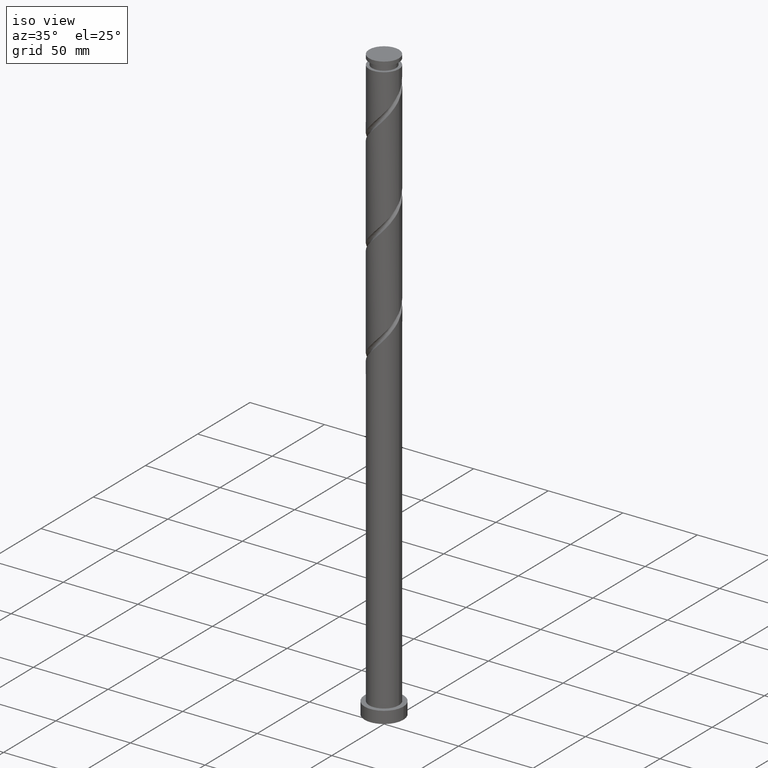
[diagram: clean part render]
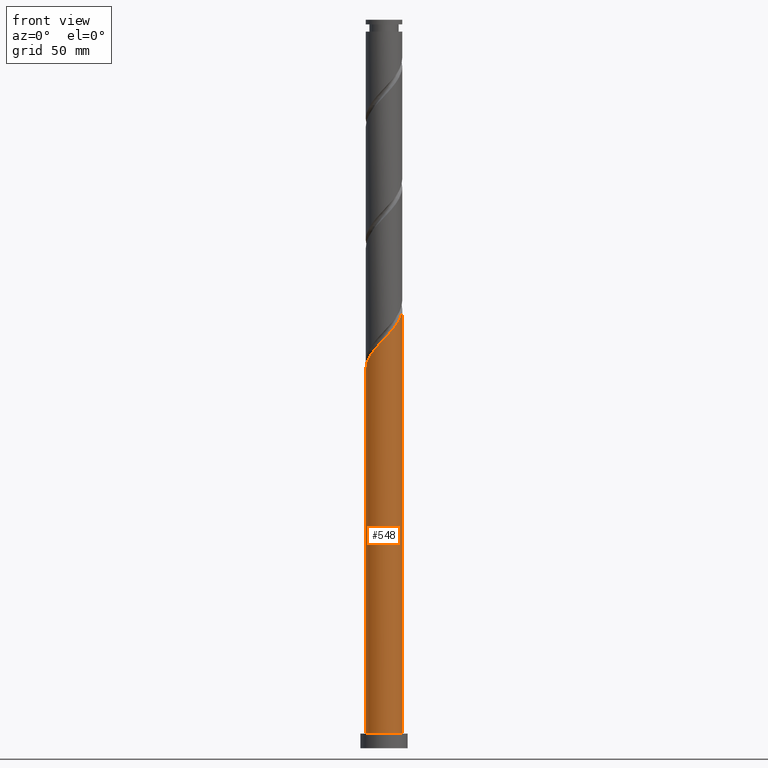
[diagram: tour spotlight — one face highlighted and labeled with its STEP entity id]
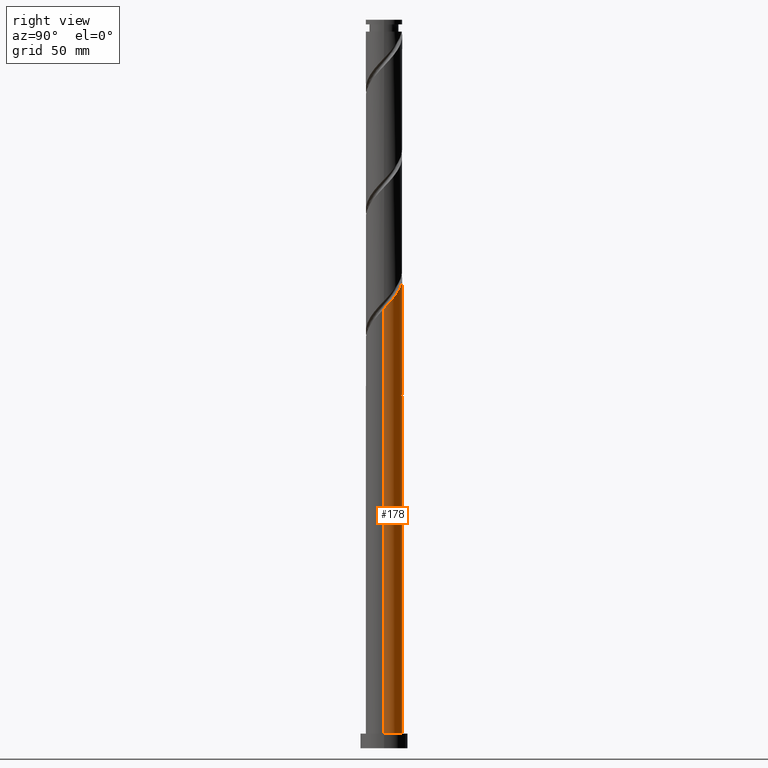
[diagram: tour spotlight — one face highlighted and labeled with its STEP entity id]
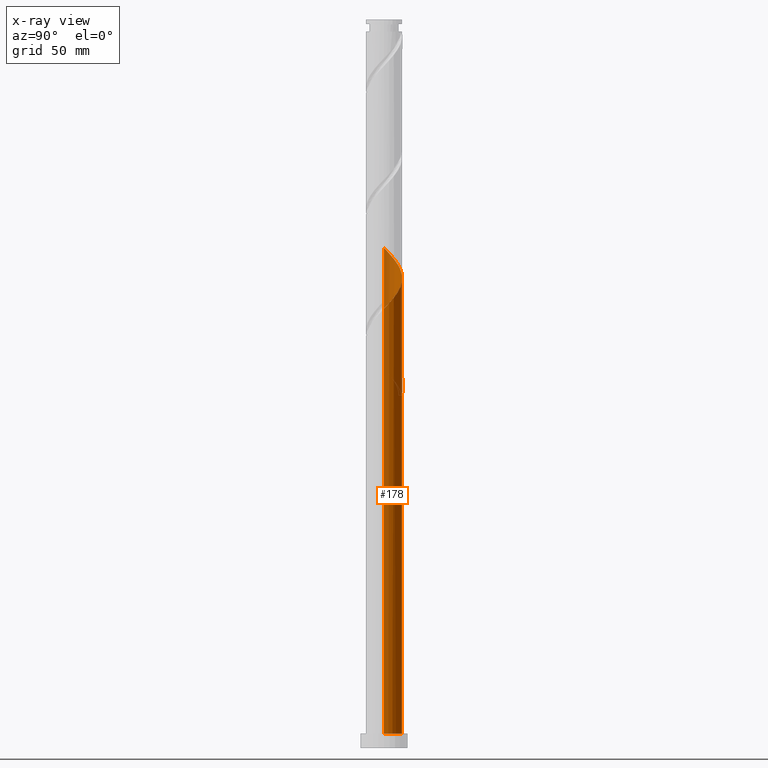
[diagram: x-ray of the same camera — body ghosted, this tour face saturated]
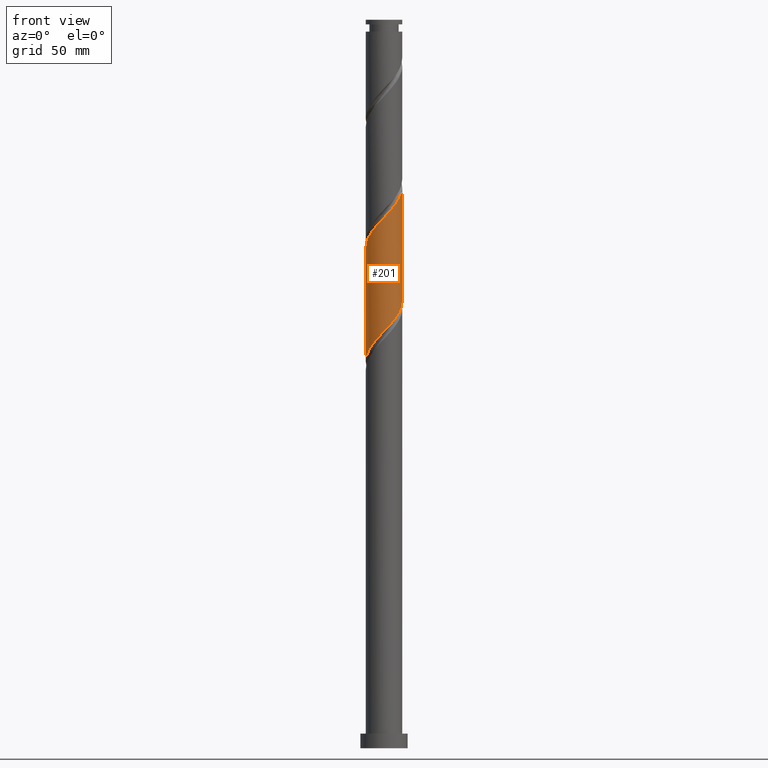
[diagram: tour spotlight — one face highlighted and labeled with its STEP entity id]
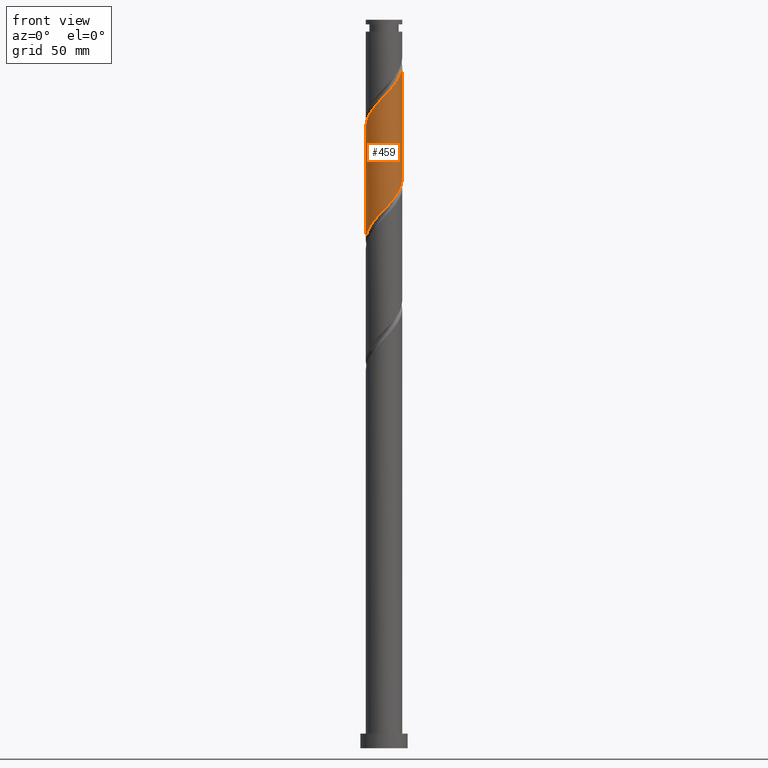
[diagram: tour spotlight — one face highlighted and labeled with its STEP entity id]
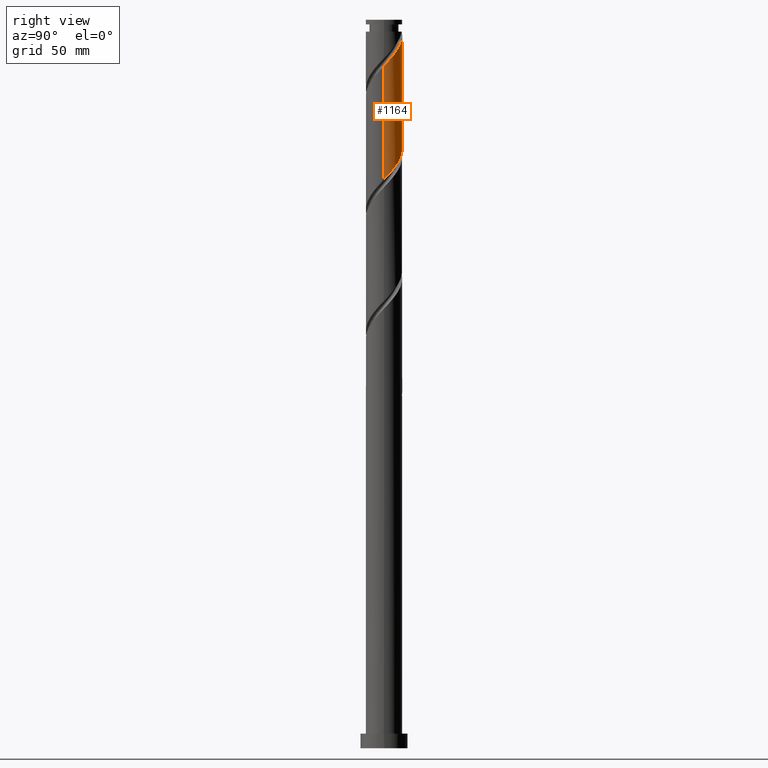
[diagram: tour spotlight — one face highlighted and labeled with its STEP entity id]
A machine part: a face-by-face anatomy tour. The part has 21 B-rep faces; the first image is the clean iso view, then the 5 largest visible faces are spotlighted one at a time (largest first), each with its STEP entity span.

Face 1 — front view, entity #548. In plain terms, the highlighted cylindrical surface (edge-blend (fillet) strip) has radius 10 mm, axis along (-0, -0, -1).
Definition (entity closure, byte-faithful):
#3 = VERTEX_POINT ( 'NONE', #1549 ) ;
#45 = DIRECTION ( 'NONE',  ( -0.000000000000000000, -0.000000000000000000, -1.000000000000000000 ) ) ;
#50 = CARTESIAN_POINT ( 'NONE',  ( -3.194128978791647810, -9.534266101484794476, 221.2939230013041936 ) ) ;
#66 = CARTESIAN_POINT ( 'NONE',  ( -10.00000000000001776, -7.623691864539335499E-15, 208.0573686466716197 ) ) ;
#80 = ORIENTED_EDGE ( 'NONE', *, *, #1810, .F. ) ;
#87 = CARTESIAN_POINT ( 'NONE',  ( -6.795917408009029437, -7.410816190582414364, 216.8494785568597081 ) ) ;
#109 = CARTESIAN_POINT ( 'NONE',  ( 1.989974874213245037, -9.800000000000013145, 226.8494785568597081 ) ) ;
#143 = CARTESIAN_POINT ( 'NONE',  ( -10.00000000000000178, 0.000000000000000000, 400.0000000000000000 ) ) ;
#204 = CYLINDRICAL_SURFACE ( 'NONE', #1207, 10.00000000000000178 ) ;
#241 = CARTESIAN_POINT ( 'NONE',  ( 10.00000000000001954, 4.065968994420978722E-15, 241.3907019800049056 ) ) ;
#249 = CARTESIAN_POINT ( 'NONE',  ( 6.659852160930830323, -7.533329889340008023, 232.4050341124152794 ) ) ;
#347 = CARTESIAN_POINT ( 'NONE',  ( 0.000000000000000000, 0.000000000000000000, 400.0000000000000000 ) ) ;
#378 = DIRECTION ( 'NONE',  ( 0.000000000000000000, 0.000000000000000000, 1.000000000000000000 ) ) ;
#381 = CARTESIAN_POINT ( 'NONE',  ( -8.188205631952753194, -5.835921397340428918, 214.6272563346375364 ) ) ;
#390 = CARTESIAN_POINT ( 'NONE',  ( -9.954323590151847867, -0.9546946436147916160, 209.0717007790819650 ) ) ;
#407 = CARTESIAN_POINT ( 'NONE',  ( 10.00000000000001421, -0.5697373744643301485, 240.7851106706202984 ) ) ;
#437 = CARTESIAN_POINT ( 'NONE',  ( 8.080585767236987849, -5.984047433418758999, 234.6272563346375364 ) ) ;
#439 = ORIENTED_EDGE ( 'NONE', *, *, #535, .T. ) ;
#448 = DIRECTION ( 'NONE',  ( -0.000000000000000000, -0.000000000000000000, -1.000000000000000000 ) ) ;
#535 = EDGE_CURVE ( 'NONE', #1839, #3, #580, .T. ) ;
#548 = ADVANCED_FACE ( 'NONE', ( #1748 ), #204, .T. ) ;
#568 = CARTESIAN_POINT ( 'NONE',  ( -0.09104542128180509453, -9.999585527973840371, 224.6272563346374511 ) ) ;
#580 = CIRCLE ( 'NONE', #1973, 10.00000000000000178 ) ;
#591 = LINE ( 'NONE', #1812, #1616 ) ;
#674 = CARTESIAN_POINT ( 'NONE',  ( -9.222629978410207485, -4.005968835176821230, 212.4050341124153078 ) ) ;
#694 = CARTESIAN_POINT ( 'NONE',  ( -10.00000000000001954, -0.4784399928674973879, 208.5659171722356291 ) ) ;
#715 = CARTESIAN_POINT ( 'NONE',  ( -5.106614982905520073, -8.661822755254432238, 219.0717007790819650 ) ) ;
#739 = CARTESIAN_POINT ( 'NONE',  ( 9.815913787825904180, -2.180029022065514077, 239.0717007790819650 ) ) ;
#749 = CARTESIAN_POINT ( 'NONE',  ( 9.482036394194134132, -3.176631206038597277, 237.9605896679708223 ) ) ;
#834 =( BOUNDED_CURVE ( )  B_SPLINE_CURVE ( 2, ( #66, #694, #390, #1933, #1026, #674, #1639, #381, #1171, #87, #1016, #715, #1453, #50, #1376, #1838, #568, #1200, #109, #2001, #1068, #1051, #1653, #249, #1665, #437, #1353, #1391, #749, #739, #893, #407, #241 ),
 .UNSPECIFIED., .F., .T. ) 
 B_SPLINE_CURVE_WITH_KNOTS ( ( 3, 2, 2, 2, 2, 2, 2, 2, 2, 2, 2, 2, 2, 2, 2, 2, 3 ),
 ( 0.05452860127731151002, 0.05833333333333334814, 0.06666666666666665186, 0.07499999999999995559, 0.08333333333333337034, 0.09166666666666667407, 0.09999999999999997780, 0.1083333333333332815, 0.1166666666666666963, 0.1250000000000000000, 0.1333333333333333037, 0.1416666666666667185, 0.1500000000000000222, 0.1583333333333333259, 0.1666666666666666297, 0.1750000000000000444, 0.1795286012773114892 ),
 .UNSPECIFIED. ) 
 CURVE ( )  GEOMETRIC_REPRESENTATION_ITEM ( )  RATIONAL_B_SPLINE_CURVE ( ( 0.9066196499552175991, 0.9068171577856303234, 0.9090909090909291557, 0.9041108139711774294, 0.9090909090909291557, 0.9041108139711774294, 0.9090909090909291557, 0.9041108139711774294, 0.9090909090909291557, 0.9041108139711774294, 0.9090909090909291557, 0.9041108139711774294, 0.9090909090909291557, 0.9041108139711774294, 0.9090909090909291557, 0.9041108139711774294, 0.9090909090909291557, 0.9041108139711774294, 0.9090909090909291557, 0.9041108139711774294, 0.9090909090909291557, 0.9041108139711774294, 0.9090909090909291557, 0.9041108139711774294, 0.9090909090909291557, 0.9041108139711774294, 0.9090909090909291557, 0.9041108139711774294, 0.9090909090909291557, 0.9041108139711774294, 0.9090909090909291557, 0.9063845652764763727, 0.9066196499552174881 ) ) 
 REPRESENTATION_ITEM ( '' )  );
#858 = EDGE_LOOP ( 'NONE', ( #80, #1060, #1866, #439 ) ) ;
#893 = CARTESIAN_POINT ( 'NONE',  ( 9.935289914203558226, -1.135787973490353764, 240.1828118901930225 ) ) ;
#924 = CARTESIAN_POINT ( 'NONE',  ( -10.00000000000000178, 0.000000000000000000, 8.000000000000000000 ) ) ;
#1008 = VECTOR ( 'NONE', #1215, 1000.000000000000000 ) ;
#1016 = CARTESIAN_POINT ( 'NONE',  ( -5.951266195457273867, -8.036319472918421525, 217.9605896679707939 ) ) ;
#1026 = CARTESIAN_POINT ( 'NONE',  ( -9.538305559066341033, -3.003452523660803841, 211.2939230013041083 ) ) ;
#1029 = CARTESIAN_POINT ( 'NONE',  ( -10.00000000000001776, -7.623691864539335499E-15, 208.0573686466715913 ) ) ;
#1051 = CARTESIAN_POINT ( 'NONE',  ( 4.948051057675698416, -8.753369680169633682, 230.1828118901931362 ) ) ;
#1060 = ORIENTED_EDGE ( 'NONE', *, *, #1673, .F. ) ;
#1064 = VERTEX_POINT ( 'NONE', #1029 ) ;
#1068 = CARTESIAN_POINT ( 'NONE',  ( 3.984023718746285248, -9.172107446408778841, 229.0717007790819366 ) ) ;
#1171 = CARTESIAN_POINT ( 'NONE',  ( -7.492061519980888207, -6.623368793961419421, 215.7383674457486222 ) ) ;
#1182 = CARTESIAN_POINT ( 'NONE',  ( 10.00000000000001776, 4.065968994420978722E-15, 241.3907019800049056 ) ) ;
#1200 = CARTESIAN_POINT ( 'NONE',  ( 0.9599533686096130003, -10.00915478735211117, 225.7383674457486791 ) ) ;
#1207 = AXIS2_PLACEMENT_3D ( 'NONE', #347, #45, #1613 ) ;
#1215 = DIRECTION ( 'NONE',  ( -0.000000000000000000, -0.000000000000000000, -1.000000000000000000 ) ) ;
#1348 = EDGE_CURVE ( 'NONE', #1064, #1839, #1841, .T. ) ;
#1353 = CARTESIAN_POINT ( 'NONE',  ( 8.614372383899674190, -5.078640411715221070, 235.7383674457485938 ) ) ;
#1376 = CARTESIAN_POINT ( 'NONE',  ( -2.168086594982433724, -9.762141185040183800, 222.4050341124152794 ) ) ;
#1391 = CARTESIAN_POINT ( 'NONE',  ( 9.148159000562365861, -4.173233390011683142, 236.8494785568597933 ) ) ;
#1449 = CARTESIAN_POINT ( 'NONE',  ( 0.000000000000000000, 0.000000000000000000, 8.000000000000000000 ) ) ;
#1453 = CARTESIAN_POINT ( 'NONE',  ( -4.150371980848581721, -9.098044428369609804, 220.1828118901930225 ) ) ;
#1549 = CARTESIAN_POINT ( 'NONE',  ( 10.00000000000000178, 1.224646799147353454E-15, 8.000000000000000000 ) ) ;
#1613 = DIRECTION ( 'NONE',  ( -1.000000000000000000, 0.000000000000000000, 0.000000000000000000 ) ) ;
#1616 = VECTOR ( 'NONE', #448, 1000.000000000000000 ) ;
#1639 = CARTESIAN_POINT ( 'NONE',  ( -8.705417805181479451, -4.920945116258624630, 213.5161452235263937 ) ) ;
#1653 = CARTESIAN_POINT ( 'NONE',  ( 5.803951609303260817, -8.143349784754821741, 231.2939230013041936 ) ) ;
#1665 = CARTESIAN_POINT ( 'NONE',  ( 7.370218964083907309, -6.758688661379380846, 233.5161452235263368 ) ) ;
#1666 = VERTEX_POINT ( 'NONE', #1182 ) ;
#1673 = EDGE_CURVE ( 'NONE', #1064, #1666, #834, .T. ) ;
#1748 = FACE_OUTER_BOUND ( 'NONE', #858, .T. ) ;
#1810 = EDGE_CURVE ( 'NONE', #1666, #3, #591, .T. ) ;
#1812 = CARTESIAN_POINT ( 'NONE',  ( 10.00000000000000178, 1.224646799147353454E-15, 400.0000000000000000 ) ) ;
#1838 = CARTESIAN_POINT ( 'NONE',  ( -1.142044211173218082, -9.990016268595582005, 223.5161452235264221 ) ) ;
#1839 = VERTEX_POINT ( 'NONE', #924 ) ;
#1841 = LINE ( 'NONE', #143, #1008 ) ;
#1866 = ORIENTED_EDGE ( 'NONE', *, *, #1348, .T. ) ;
#1929 = DIRECTION ( 'NONE',  ( 1.000000000000000000, 0.000000000000000000, 0.000000000000000000 ) ) ;
#1933 = CARTESIAN_POINT ( 'NONE',  ( -9.853981139722474580, -2.000936212144786452, 210.1828118901930509 ) ) ;
#1973 = AXIS2_PLACEMENT_3D ( 'NONE', #1449, #378, #1929 ) ;
#2001 = CARTESIAN_POINT ( 'NONE',  ( 3.019996379816873855, -9.590845212647927553, 227.9605896679708792 ) ) ;

Face 2 — right view, entity #178. An x-ray twin of the same camera follows (body ghosted, this face saturated) — the face is partly hidden behind the body. In plain terms, the highlighted cylindrical surface (edge-blend (fillet) strip) has radius 10 mm, axis along (-0, -0, -1).
Definition (entity closure, byte-faithful):
#2 = CARTESIAN_POINT ( 'NONE',  ( -8.080585767236989625, 5.984047433418756334, 201.2939230013041936 ) ) ;
#3 = VERTEX_POINT ( 'NONE', #1549 ) ;
#16 = CARTESIAN_POINT ( 'NONE',  ( -1.989974874213243705, 9.800000000000013145, 193.5161452235263937 ) ) ;
#18 = CARTESIAN_POINT ( 'NONE',  ( 0.000000000000000000, 0.000000000000000000, 193.5161452235266211 ) ) ;
#21 = CARTESIAN_POINT ( 'NONE',  ( 3.194128978791649143, 9.534266101484794476, 254.6272563346374511 ) ) ;
#24 = CIRCLE ( 'NONE', #1843, 10.00000000000000178 ) ;
#72 = CARTESIAN_POINT ( 'NONE',  ( -1.142044211173214086, 9.990016268595569571, 196.8494785568596797 ) ) ;
#94 = CARTESIAN_POINT ( 'NONE',  ( -5.803951609303265258, 8.143349784754819964, 197.9605896679708223 ) ) ;
#122 = ORIENTED_EDGE ( 'NONE', *, *, #1348, .F. ) ;
#124 = EDGE_CURVE ( 'NONE', #1898, #1681, #24, .T. ) ;
#143 = CARTESIAN_POINT ( 'NONE',  ( -10.00000000000000178, 0.000000000000000000, 400.0000000000000000 ) ) ;
#162 = CARTESIAN_POINT ( 'NONE',  ( 0.000000000000000000, 0.000000000000000000, 8.000000000000000000 ) ) ;
#175 = CARTESIAN_POINT ( 'NONE',  ( -0.09104542128179893279, 9.999585527973833265, 195.7383674457486507 ) ) ;
#178 = ADVANCED_FACE ( 'NONE', ( #1570 ), #1724, .T. ) ;
#213 = CARTESIAN_POINT ( 'NONE',  ( -6.795917408009019667, 7.410816190582407259, 203.5161452235264505 ) ) ;
#229 = CARTESIAN_POINT ( 'NONE',  ( -10.00000000000001954, -7.623691864539335499E-15, 274.7240353133382769 ) ) ;
#289 = CARTESIAN_POINT ( 'NONE',  ( -10.00000000000001421, 0.5697373744643248195, 207.4517773372870124 ) ) ;
#290 = ORIENTED_EDGE ( 'NONE', *, *, #1566, .F. ) ;
#294 = ORIENTED_EDGE ( 'NONE', *, *, #809, .F. ) ;
#306 = CARTESIAN_POINT ( 'NONE',  ( 5.951266195457275643, 8.036319472918419748, 251.2939230013041652 ) ) ;
#339 = CARTESIAN_POINT ( 'NONE',  ( -0.9599533686096075602, 10.00915478735211295, 259.0717007790819935 ) ) ;
#351 = CARTESIAN_POINT ( 'NONE',  ( -7.370218964083909974, 6.758688661379380846, 266.8494785568596512 ) ) ;
#369 = CARTESIAN_POINT ( 'NONE',  ( -7.492061519980878437, 6.623368793961415868, 204.6272563346375364 ) ) ;
#386 = CARTESIAN_POINT ( 'NONE',  ( 1.989974874213247702, 9.800000000000000711, 193.5161452235263937 ) ) ;
#395 = CARTESIAN_POINT ( 'NONE',  ( -6.659852160930831211, 7.533329889340008023, 199.0717007790819935 ) ) ;
#425 = VERTEX_POINT ( 'NONE', #836 ) ;
#445 = CARTESIAN_POINT ( 'NONE',  ( -8.614372383899674190, 5.078640411715219294, 202.4050341124153078 ) ) ;
#448 = DIRECTION ( 'NONE',  ( -0.000000000000000000, -0.000000000000000000, -1.000000000000000000 ) ) ;
#485 = ORIENTED_EDGE ( 'NONE', *, *, #578, .F. ) ;
#507 = CARTESIAN_POINT ( 'NONE',  ( 0.9599533686096159979, 10.00915478735209696, 194.6272563346375364 ) ) ;
#527 = CARTESIAN_POINT ( 'NONE',  ( -10.00000000000001776, -7.623691864539335499E-15, 274.7240353133382769 ) ) ;
#536 = CIRCLE ( 'NONE', #1044, 10.00000000000000178 ) ;
#537 = CARTESIAN_POINT ( 'NONE',  ( -10.00000000000000000, 1.162986719727772808E-14, 212.3082551337145674 ) ) ;
#562 = VERTEX_POINT ( 'NONE', #527 ) ;
#576 = ORIENTED_EDGE ( 'NONE', *, *, #1520, .T. ) ;
#578 = EDGE_CURVE ( 'NONE', #425, #1681, #1685, .T. ) ;
#591 = LINE ( 'NONE', #1812, #1616 ) ;
#603 = DIRECTION ( 'NONE',  ( -0.000000000000000000, -0.000000000000000000, -1.000000000000000000 ) ) ;
#615 = CARTESIAN_POINT ( 'NONE',  ( -1.989974874213243705, 9.800000000000013145, 193.5161452235263937 ) ) ;
#620 = DIRECTION ( 'NONE',  ( -1.000000000000000000, 0.000000000000000000, 0.000000000000000000 ) ) ;
#623 = CARTESIAN_POINT ( 'NONE',  ( 8.705417805181479451, 4.920945116258624630, 246.8494785568597081 ) ) ;
#643 = CARTESIAN_POINT ( 'NONE',  ( 2.168086594982438164, 9.762141185040183800, 255.7383674457485654 ) ) ;
#665 = CARTESIAN_POINT ( 'NONE',  ( -1.989974874213244149, 9.800000000000013145, 260.1828118901930793 ) ) ;
#689 = ORIENTED_EDGE ( 'NONE', *, *, #1810, .T. ) ;
#726 = ORIENTED_EDGE ( 'NONE', *, *, #1399, .F. ) ;
#760 =( BOUNDED_CURVE ( )  B_SPLINE_CURVE ( 2, ( #615, #1702, #1502, #1339, #94, #395, #1033, #2, #445, #1711, #1361, #2006, #1349, #289, #1198 ),
 .UNSPECIFIED., .F., .T. ) 
 B_SPLINE_CURVE_WITH_KNOTS ( ( 3, 2, 2, 2, 2, 2, 2, 3 ),
 ( 0.000000000000000000, 0.008333333333333303727, 0.01666666666666671848, 0.02500000000000002220, 0.03333333333333332593, 0.04166666666666662966, 0.05000000000000004441, 0.05452860127731151002 ),
 .UNSPECIFIED. ) 
 CURVE ( )  GEOMETRIC_REPRESENTATION_ITEM ( )  RATIONAL_B_SPLINE_CURVE ( ( 0.9090909090909291557, 0.9041108139711774294, 0.9090909090909291557, 0.9041108139711774294, 0.9090909090909291557, 0.9041108139711774294, 0.9090909090909291557, 0.9041108139711774294, 0.9090909090909291557, 0.9041108139711774294, 0.9090909090909291557, 0.9041108139711774294, 0.9090909090909291557, 0.9063845652764763727, 0.9066196499552175991 ) ) 
 REPRESENTATION_ITEM ( '' )  );
#797 = CARTESIAN_POINT ( 'NONE',  ( 0.000000000000000000, 0.000000000000000000, 400.0000000000000000 ) ) ;
#802 = CARTESIAN_POINT ( 'NONE',  ( 9.538305559066342809, 3.003452523660800288, 244.6272563346375364 ) ) ;
#809 = EDGE_CURVE ( 'NONE', #1898, #1064, #760, .T. ) ;
#836 = CARTESIAN_POINT ( 'NONE',  ( -10.00000000000000178, 1.162986719727772808E-14, 212.3082551337145958 ) ) ;
#839 = CARTESIAN_POINT ( 'NONE',  ( -9.935289914203558226, 1.135787973490352654, 273.5161452235263368 ) ) ;
#843 = VECTOR ( 'NONE', #603, 1000.000000000000000 ) ;
#849 = CARTESIAN_POINT ( 'NONE',  ( -5.951266195457262320, 8.036319472918414419, 202.4050341124153078 ) ) ;
#855 = CARTESIAN_POINT ( 'NONE',  ( -9.815913787825905956, 2.180029022065508304, 272.4050341124153078 ) ) ;
#860 = CARTESIAN_POINT ( 'NONE',  ( -5.106614982905509414, 8.661822755254421580, 201.2939230013041936 ) ) ;
#884 = CARTESIAN_POINT ( 'NONE',  ( 1.989974874213247702, 9.800000000000000711, 193.5161452235263937 ) ) ;
#924 = CARTESIAN_POINT ( 'NONE',  ( -10.00000000000000178, 0.000000000000000000, 8.000000000000000000 ) ) ;
#946 = CARTESIAN_POINT ( 'NONE',  ( 5.106614982905524514, 8.661822755254428685, 252.4050341124153363 ) ) ;
#956 = DIRECTION ( 'NONE',  ( 1.000000000000000000, 0.000000000000000000, 0.000000000000000000 ) ) ;
#973 = CARTESIAN_POINT ( 'NONE',  ( 10.00000000000001776, 0.4784399928674902824, 241.8992505055689435 ) ) ;
#983 = CARTESIAN_POINT ( 'NONE',  ( 4.150371980848582609, 9.098044428369609804, 253.5161452235263368 ) ) ;
#1008 = VECTOR ( 'NONE', #1215, 1000.000000000000000 ) ;
#1012 = CARTESIAN_POINT ( 'NONE',  ( -9.538305559066326822, 3.003452523660803841, 209.0717007790820219 ) ) ;
#1022 = EDGE_LOOP ( 'NONE', ( #290, #689, #576, #122, #294, #1887, #485, #726 ) ) ;
#1029 = CARTESIAN_POINT ( 'NONE',  ( -10.00000000000001776, -7.623691864539335499E-15, 208.0573686466715913 ) ) ;
#1033 = CARTESIAN_POINT ( 'NONE',  ( -7.370218964083909974, 6.758688661379380846, 200.1828118901931077 ) ) ;
#1044 = AXIS2_PLACEMENT_3D ( 'NONE', #162, #1894, #956 ) ;
#1064 = VERTEX_POINT ( 'NONE', #1029 ) ;
#1080 = LINE ( 'NONE', #1708, #843 ) ;
#1106 = DIRECTION ( 'NONE',  ( -3.081487911019574562E-30, -2.081668171172167567E-14, -1.000000000000000000 ) ) ;
#1108 = CARTESIAN_POINT ( 'NONE',  ( 9.853981139722474580, 2.000936212144784676, 243.5161452235264505 ) ) ;
#1130 = CARTESIAN_POINT ( 'NONE',  ( 6.795917408009032101, 7.410816190582412588, 250.1828118901931077 ) ) ;
#1141 = CARTESIAN_POINT ( 'NONE',  ( -4.948051057675699305, 8.753369680169631906, 263.5161452235264505 ) ) ;
#1147 = CARTESIAN_POINT ( 'NONE',  ( -4.150371980848574616, 9.098044428369600922, 200.1828118901931362 ) ) ;
#1168 = CARTESIAN_POINT ( 'NONE',  ( -9.222629978410189722, 4.005968835176819454, 207.9605896679708508 ) ) ;
#1179 = CARTESIAN_POINT ( 'NONE',  ( -9.954323590151835432, 0.9546946436147952797, 211.2939230013042504 ) ) ;
#1182 = CARTESIAN_POINT ( 'NONE',  ( 10.00000000000001776, 4.065968994420978722E-15, 241.3907019800049056 ) ) ;
#1198 = CARTESIAN_POINT ( 'NONE',  ( -10.00000000000001776, -7.623691864539335499E-15, 208.0573686466716197 ) ) ;
#1215 = DIRECTION ( 'NONE',  ( -0.000000000000000000, -0.000000000000000000, -1.000000000000000000 ) ) ;
#1255 = CARTESIAN_POINT ( 'NONE',  ( -5.803951609303265258, 8.143349784754819964, 264.6272563346374795 ) ) ;
#1275 = CARTESIAN_POINT ( 'NONE',  ( 0.09104542128180637128, 9.999585527973840371, 257.9605896679707939 ) ) ;
#1295 = DIRECTION ( 'NONE',  ( 0.000000000000000000, 1.000000000000000000, -1.942890293094023630E-14 ) ) ;
#1298 = CARTESIAN_POINT ( 'NONE',  ( -3.019996379816877852, 9.590845212647922224, 261.2939230013041652 ) ) ;
#1302 = CARTESIAN_POINT ( 'NONE',  ( -9.853981139722460370, 2.000936212144785564, 210.1828118901930509 ) ) ;
#1339 = CARTESIAN_POINT ( 'NONE',  ( -4.948051057675699305, 8.753369680169631906, 196.8494785568597649 ) ) ;
#1348 = EDGE_CURVE ( 'NONE', #1064, #1839, #1841, .T. ) ;
#1349 = CARTESIAN_POINT ( 'NONE',  ( -9.935289914203558226, 1.135787973490352654, 206.8494785568597649 ) ) ;
#1361 = CARTESIAN_POINT ( 'NONE',  ( -9.482036394194134132, 3.176631206038594168, 204.6272563346375364 ) ) ;
#1399 = EDGE_CURVE ( 'NONE', #562, #425, #1080, .T. ) ;
#1427 = CARTESIAN_POINT ( 'NONE',  ( 8.188205631952753194, 5.835921397340425365, 247.9605896679708508 ) ) ;
#1431 = AXIS2_PLACEMENT_3D ( 'NONE', #797, #1734, #620 ) ;
#1445 = CARTESIAN_POINT ( 'NONE',  ( 9.954323590151849643, 0.9546946436147862869, 242.4050341124152226 ) ) ;
#1476 = CARTESIAN_POINT ( 'NONE',  ( -2.168086594982426174, 9.762141185040174918, 197.9605896679708792 ) ) ;
#1479 = CARTESIAN_POINT ( 'NONE',  ( -9.148159000562365861, 4.173233390011680477, 270.1828118901930793 ) ) ;
#1502 = CARTESIAN_POINT ( 'NONE',  ( -3.984023718746287912, 9.172107446408778841, 195.7383674457486507 ) ) ;
#1520 = EDGE_CURVE ( 'NONE', #3, #1839, #536, .T. ) ;
#1549 = CARTESIAN_POINT ( 'NONE',  ( 10.00000000000000178, 1.224646799147353454E-15, 8.000000000000000000 ) ) ;
#1566 = EDGE_CURVE ( 'NONE', #1666, #562, #1877, .T. ) ;
#1570 = FACE_OUTER_BOUND ( 'NONE', #1022, .T. ) ;
#1598 = CARTESIAN_POINT ( 'NONE',  ( -8.080585767236989625, 5.984047433418756334, 267.9605896679708508 ) ) ;
#1604 = CARTESIAN_POINT ( 'NONE',  ( -8.705417805181468793, 4.920945116258621077, 206.8494785568597933 ) ) ;
#1616 = VECTOR ( 'NONE', #448, 1000.000000000000000 ) ;
#1666 = VERTEX_POINT ( 'NONE', #1182 ) ;
#1681 = VERTEX_POINT ( 'NONE', #884 ) ;
#1685 =( BOUNDED_CURVE ( )  B_SPLINE_CURVE ( 2, ( #537, #1760, #1179, #1302, #1012, #1168, #1604, #1908, #369, #213, #849, #860, #1147, #1921, #1476, #72, #175, #507, #386 ),
 .UNSPECIFIED., .F., .T. ) 
 B_SPLINE_CURVE_WITH_KNOTS ( ( 3, 2, 2, 2, 2, 2, 2, 2, 2, 3 ),
 ( 0.9295286012773115170, 0.9333333333333333481, 0.9416666666666666519, 0.9499999999999999556, 0.9583333333333333703, 0.9666666666666666741, 0.9749999999999999778, 0.9833333333333332815, 0.9916666666666666963, 1.000000000000000000 ),
 .UNSPECIFIED. ) 
 CURVE ( )  GEOMETRIC_REPRESENTATION_ITEM ( )  RATIONAL_B_SPLINE_CURVE ( ( 0.9066196499552116039, 0.9068171577856243282, 0.9090909090909231605, 0.9041108139711716563, 0.9090909090909231605, 0.9041108139711716563, 0.9090909090909231605, 0.9041108139711716563, 0.9090909090909231605, 0.9041108139711716563, 0.9090909090909231605, 0.9041108139711716563, 0.9090909090909231605, 0.9041108139711716563, 0.9090909090909231605, 0.9041108139711716563, 0.9090909090909231605, 0.9041108139711716563, 0.9090909090909231605 ) ) 
 REPRESENTATION_ITEM ( '' )  );
#1702 = CARTESIAN_POINT ( 'NONE',  ( -3.019996379816877852, 9.590845212647922224, 194.6272563346375364 ) ) ;
#1708 = CARTESIAN_POINT ( 'NONE',  ( -10.00000000000000178, 0.000000000000000000, 400.0000000000000000 ) ) ;
#1711 = CARTESIAN_POINT ( 'NONE',  ( -9.148159000562365861, 4.173233390011680477, 203.5161452235263937 ) ) ;
#1724 = CYLINDRICAL_SURFACE ( 'NONE', #1431, 10.00000000000000178 ) ;
#1726 = CARTESIAN_POINT ( 'NONE',  ( 10.00000000000001954, 4.065968994420978722E-15, 241.3907019800049056 ) ) ;
#1734 = DIRECTION ( 'NONE',  ( -0.000000000000000000, -0.000000000000000000, -1.000000000000000000 ) ) ;
#1736 = CARTESIAN_POINT ( 'NONE',  ( 9.222629978410214591, 4.005968835176815901, 245.7383674457486791 ) ) ;
#1744 = CARTESIAN_POINT ( 'NONE',  ( 1.142044211173220081, 9.990016268595582005, 256.8494785568597649 ) ) ;
#1754 = CARTESIAN_POINT ( 'NONE',  ( -6.659852160930831211, 7.533329889340008023, 265.7383674457487359 ) ) ;
#1760 = CARTESIAN_POINT ( 'NONE',  ( -10.00000000000000178, 0.4784399928675020508, 211.7997066081505295 ) ) ;
#1784 = CARTESIAN_POINT ( 'NONE',  ( -10.00000000000001776, 0.5697373744643173810, 274.1184440039536980 ) ) ;
#1810 = EDGE_CURVE ( 'NONE', #1666, #3, #591, .T. ) ;
#1812 = CARTESIAN_POINT ( 'NONE',  ( 10.00000000000000178, 1.224646799147353454E-15, 400.0000000000000000 ) ) ;
#1839 = VERTEX_POINT ( 'NONE', #924 ) ;
#1841 = LINE ( 'NONE', #143, #1008 ) ;
#1843 = AXIS2_PLACEMENT_3D ( 'NONE', #18, #1106, #1295 ) ;
#1863 = CARTESIAN_POINT ( 'NONE',  ( 7.492061519980892648, 6.623368793961415868, 249.0717007790819366 ) ) ;
#1877 =( BOUNDED_CURVE ( )  B_SPLINE_CURVE ( 2, ( #1726, #973, #1445, #1108, #802, #1736, #623, #1427, #1863, #1130, #306, #946, #983, #21, #643, #1744, #1275, #339, #665, #1298, #1904, #1141, #1255, #1754, #351, #1598, #2015, #1479, #1950, #855, #839, #1784, #229 ),
 .UNSPECIFIED., .F., .T. ) 
 B_SPLINE_CURVE_WITH_KNOTS ( ( 3, 2, 2, 2, 2, 2, 2, 2, 2, 2, 2, 2, 2, 2, 2, 2, 3 ),
 ( 0.1795286012773114892, 0.1833333333333333481, 0.1916666666666666519, 0.1999999999999999556, 0.2083333333333333703, 0.2166666666666666741, 0.2249999999999999778, 0.2333333333333332815, 0.2416666666666666963, 0.2500000000000000000, 0.2583333333333333037, 0.2666666666666667185, 0.2750000000000000222, 0.2833333333333333259, 0.2916666666666666297, 0.3000000000000000444, 0.3045286012773115725 ),
 .UNSPECIFIED. ) 
 CURVE ( )  GEOMETRIC_REPRESENTATION_ITEM ( )  RATIONAL_B_SPLINE_CURVE ( ( 0.9066196499552174881, 0.9068171577856302124, 0.9090909090909291557, 0.9041108139711774294, 0.9090909090909291557, 0.9041108139711774294, 0.9090909090909291557, 0.9041108139711774294, 0.9090909090909291557, 0.9041108139711774294, 0.9090909090909291557, 0.9041108139711774294, 0.9090909090909291557, 0.9041108139711774294, 0.9090909090909291557, 0.9041108139711774294, 0.9090909090909291557, 0.9041108139711774294, 0.9090909090909291557, 0.9041108139711774294, 0.9090909090909291557, 0.9041108139711774294, 0.9090909090909291557, 0.9041108139711774294, 0.9090909090909291557, 0.9041108139711774294, 0.9090909090909291557, 0.9041108139711774294, 0.9090909090909291557, 0.9041108139711774294, 0.9090909090909291557, 0.9063845652764762617, 0.9066196499552174881 ) ) 
 REPRESENTATION_ITEM ( '' )  );
#1887 = ORIENTED_EDGE ( 'NONE', *, *, #124, .T. ) ;
#1894 = DIRECTION ( 'NONE',  ( 0.000000000000000000, 0.000000000000000000, 1.000000000000000000 ) ) ;
#1898 = VERTEX_POINT ( 'NONE', #16 ) ;
#1904 = CARTESIAN_POINT ( 'NONE',  ( -3.984023718746287912, 9.172107446408778841, 262.4050341124152510 ) ) ;
#1908 = CARTESIAN_POINT ( 'NONE',  ( -8.188205631952737207, 5.835921397340423589, 205.7383674457486791 ) ) ;
#1921 = CARTESIAN_POINT ( 'NONE',  ( -3.194128978791638485, 9.534266101484783817, 199.0717007790819650 ) ) ;
#1950 = CARTESIAN_POINT ( 'NONE',  ( -9.482036394194134132, 3.176631206038594168, 271.2939230013041083 ) ) ;
#2006 = CARTESIAN_POINT ( 'NONE',  ( -9.815913787825905956, 2.180029022065508304, 205.7383674457486791 ) ) ;
#2015 = CARTESIAN_POINT ( 'NONE',  ( -8.614372383899674190, 5.078640411715219294, 269.0717007790818798 ) ) ;

Face 3 — front view, entity #201. In plain terms, the highlighted cylindrical surface (edge-blend (fillet) strip) has radius 10 mm, axis along (-0, -0, -1).
Definition (entity closure, byte-faithful):
#6 = CARTESIAN_POINT ( 'NONE',  ( 4.150371980848572839, -9.098044428369600922, 233.5161452235263937 ) ) ;
#35 = CARTESIAN_POINT ( 'NONE',  ( 8.080585767236987849, -5.984047433418758999, 301.2939230013041652 ) ) ;
#36 = CARTESIAN_POINT ( 'NONE',  ( -9.815913787825893522, -2.180029022065501199, 214.6272563346375364 ) ) ;
#116 = CARTESIAN_POINT ( 'NONE',  ( -8.705417805181479451, -4.920945116258624630, 280.1828118901931362 ) ) ;
#117 = EDGE_CURVE ( 'NONE', #210, #425, #1201, .T. ) ;
#151 = CARTESIAN_POINT ( 'NONE',  ( 9.853981139722460370, -2.000936212144786897, 243.5161452235263937 ) ) ;
#157 = CARTESIAN_POINT ( 'NONE',  ( -0.09104542128180509453, -9.999585527973840371, 291.2939230013041083 ) ) ;
#167 = CARTESIAN_POINT ( 'NONE',  ( 9.954323590151835432, -0.9546946436147987214, 244.6272563346375648 ) ) ;
#176 = CARTESIAN_POINT ( 'NONE',  ( 7.370218964083907309, -6.758688661379380846, 300.1828118901930793 ) ) ;
#177 = CARTESIAN_POINT ( 'NONE',  ( -3.019996379816876519, -9.590845212647908014, 225.7383674457486507 ) ) ;
#201 = ADVANCED_FACE ( 'NONE', ( #1577 ), #1425, .T. ) ;
#210 = VERTEX_POINT ( 'NONE', #1443 ) ;
#262 = CARTESIAN_POINT ( 'NONE',  ( -9.954323590151847867, -0.9546946436147916160, 275.7383674457485654 ) ) ;
#283 = CARTESIAN_POINT ( 'NONE',  ( 10.00000000000001776, 4.065968994420978722E-15, 308.0573686466716481 ) ) ;
#303 = CARTESIAN_POINT ( 'NONE',  ( 9.935289914203558226, -1.135787973490353764, 306.8494785568597649 ) ) ;
#304 = CARTESIAN_POINT ( 'NONE',  ( -10.00000000000000355, -0.5697373744643202675, 212.9138464430991462 ) ) ;
#316 = CARTESIAN_POINT ( 'NONE',  ( -6.659852160930825882, -7.533329889339995589, 221.2939230013042220 ) ) ;
#326 = CARTESIAN_POINT ( 'NONE',  ( 1.989974874213245037, -9.800000000000013145, 293.5161452235264505 ) ) ;
#327 = CARTESIAN_POINT ( 'NONE',  ( -4.948051057675693976, -8.753369680169619471, 223.5161452235263653 ) ) ;
#413 = ORIENTED_EDGE ( 'NONE', *, *, #732, .F. ) ;
#425 = VERTEX_POINT ( 'NONE', #836 ) ;
#430 = CARTESIAN_POINT ( 'NONE',  ( -5.951266195457273867, -8.036319472918421525, 284.6272563346374227 ) ) ;
#456 = CARTESIAN_POINT ( 'NONE',  ( 9.148159000562365861, -4.173233390011683142, 303.5161452235263937 ) ) ;
#457 = CARTESIAN_POINT ( 'NONE',  ( 7.492061519980878437, -6.623368793961417644, 237.9605896679709076 ) ) ;
#478 = CARTESIAN_POINT ( 'NONE',  ( 8.614372383899674190, -5.078640411715221070, 302.4050341124151942 ) ) ;
#480 = CARTESIAN_POINT ( 'NONE',  ( -7.370218964083902868, -6.758688661379370188, 220.1828118901930793 ) ) ;
#489 = CARTESIAN_POINT ( 'NONE',  ( 10.00000000000001776, -0.5697373744643199345, 307.4517773372871261 ) ) ;
#500 = CARTESIAN_POINT ( 'NONE',  ( 6.795917408009017890, -7.410816190582407259, 236.8494785568597933 ) ) ;
#527 = CARTESIAN_POINT ( 'NONE',  ( -10.00000000000001776, -7.623691864539335499E-15, 274.7240353133382769 ) ) ;
#562 = VERTEX_POINT ( 'NONE', #527 ) ;
#563 = DIRECTION ( 'NONE',  ( -0.000000000000000000, -0.000000000000000000, -1.000000000000000000 ) ) ;
#603 = DIRECTION ( 'NONE',  ( -0.000000000000000000, -0.000000000000000000, -1.000000000000000000 ) ) ;
#631 = CARTESIAN_POINT ( 'NONE',  ( -10.00000000000000000, 1.162986719727772808E-14, 212.3082551337145674 ) ) ;
#639 = DIRECTION ( 'NONE',  ( -0.000000000000000000, -0.000000000000000000, -1.000000000000000000 ) ) ;
#642 = AXIS2_PLACEMENT_3D ( 'NONE', #1253, #639, #1137 ) ;
#649 = CARTESIAN_POINT ( 'NONE',  ( 0.09104542128179636540, -9.999585527973833265, 229.0717007790819650 ) ) ;
#732 = EDGE_CURVE ( 'NONE', #1876, #210, #1865, .T. ) ;
#769 = CARTESIAN_POINT ( 'NONE',  ( -7.492061519980888207, -6.623368793961419421, 282.4050341124152510 ) ) ;
#777 = CARTESIAN_POINT ( 'NONE',  ( 10.00000000000001954, 4.065968994420978722E-15, 308.0573686466716481 ) ) ;
#778 = CARTESIAN_POINT ( 'NONE',  ( 9.538305559066323269, -3.003452523660809170, 242.4050341124153078 ) ) ;
#787 = CARTESIAN_POINT ( 'NONE',  ( 8.705417805181468793, -4.920945116258622853, 240.1828118901930793 ) ) ;
#795 = CARTESIAN_POINT ( 'NONE',  ( 3.984023718746285248, -9.172107446408778841, 295.7383674457486222 ) ) ;
#806 = CARTESIAN_POINT ( 'NONE',  ( 4.948051057675698416, -8.753369680169633682, 296.8494785568597649 ) ) ;
#807 = CARTESIAN_POINT ( 'NONE',  ( 1.142044211173212975, -9.990016268595571347, 230.1828118901930793 ) ) ;
#836 = CARTESIAN_POINT ( 'NONE',  ( -10.00000000000000178, 1.162986719727772808E-14, 212.3082551337145958 ) ) ;
#843 = VECTOR ( 'NONE', #603, 1000.000000000000000 ) ;
#866 = EDGE_LOOP ( 'NONE', ( #413, #1187, #1219, #1660 ) ) ;
#902 = CARTESIAN_POINT ( 'NONE',  ( -9.538305559066341033, -3.003452523660803841, 277.9605896679708508 ) ) ;
#942 = CARTESIAN_POINT ( 'NONE',  ( 6.659852160930830323, -7.533329889340008023, 299.0717007790819366 ) ) ;
#943 = CARTESIAN_POINT ( 'NONE',  ( -1.989974874213246370, -9.800000000000000711, 226.8494785568597933 ) ) ;
#962 = CARTESIAN_POINT ( 'NONE',  ( -8.614372383899667085, -5.078640411715207748, 217.9605896679709360 ) ) ;
#1059 = CARTESIAN_POINT ( 'NONE',  ( -10.00000000000001954, -7.623691864539335499E-15, 274.7240353133382769 ) ) ;
#1080 = LINE ( 'NONE', #1708, #843 ) ;
#1086 = CARTESIAN_POINT ( 'NONE',  ( 9.482036394194134132, -3.176631206038597277, 304.6272563346374795 ) ) ;
#1095 = CARTESIAN_POINT ( 'NONE',  ( 3.019996379816873855, -9.590845212647927553, 294.6272563346374795 ) ) ;
#1096 = CARTESIAN_POINT ( 'NONE',  ( -3.984023718746288800, -9.172107446408757525, 224.6272563346375364 ) ) ;
#1116 = CARTESIAN_POINT ( 'NONE',  ( -0.9599533686096201057, -10.00915478735209696, 227.9605896679708508 ) ) ;
#1137 = DIRECTION ( 'NONE',  ( -1.000000000000000000, 0.000000000000000000, 0.000000000000000000 ) ) ;
#1187 = ORIENTED_EDGE ( 'NONE', *, *, #1883, .F. ) ;
#1201 =( BOUNDED_CURVE ( )  B_SPLINE_CURVE ( 2, ( #1902, #1751, #167, #151, #778, #1417, #787, #1587, #457, #500, #1880, #1261, #6, #1559, #1406, #807, #649, #1116, #943, #177, #1096, #327, #1281, #316, #480, #1892, #962, #2013, #1869, #36, #1435, #304, #631 ),
 .UNSPECIFIED., .F., .T. ) 
 B_SPLINE_CURVE_WITH_KNOTS ( ( 3, 2, 2, 2, 2, 2, 2, 2, 2, 2, 2, 2, 2, 2, 2, 2, 3 ),
 ( 0.8045286012773114059, 0.8083333333333333481, 0.8166666666666666519, 0.8249999999999999556, 0.8333333333333333703, 0.8416666666666666741, 0.8499999999999999778, 0.8583333333333332815, 0.8666666666666666963, 0.8750000000000000000, 0.8833333333333333037, 0.8916666666666667185, 0.9000000000000000222, 0.9083333333333333259, 0.9166666666666666297, 0.9250000000000000444, 0.9295286012773115170 ),
 .UNSPECIFIED. ) 
 CURVE ( )  GEOMETRIC_REPRESENTATION_ITEM ( )  RATIONAL_B_SPLINE_CURVE ( ( 0.9066196499552116039, 0.9068171577856243282, 0.9090909090909231605, 0.9041108139711716563, 0.9090909090909231605, 0.9041108139711716563, 0.9090909090909231605, 0.9041108139711716563, 0.9090909090909231605, 0.9041108139711716563, 0.9090909090909231605, 0.9041108139711716563, 0.9090909090909231605, 0.9041108139711716563, 0.9090909090909231605, 0.9041108139711716563, 0.9090909090909231605, 0.9041108139711716563, 0.9090909090909231605, 0.9041108139711716563, 0.9090909090909231605, 0.9041108139711716563, 0.9090909090909231605, 0.9041108139711716563, 0.9090909090909231605, 0.9041108139711716563, 0.9090909090909231605, 0.9041108139711716563, 0.9090909090909231605, 0.9041108139711716563, 0.9090909090909231605, 0.9063845652764703775, 0.9066196499552116039 ) ) 
 REPRESENTATION_ITEM ( '' )  );
#1219 = ORIENTED_EDGE ( 'NONE', *, *, #1399, .T. ) ;
#1223 = CARTESIAN_POINT ( 'NONE',  ( -8.188205631952753194, -5.835921397340428918, 281.2939230013042788 ) ) ;
#1252 = CARTESIAN_POINT ( 'NONE',  ( -2.168086594982433724, -9.762141185040183800, 289.0717007790818798 ) ) ;
#1253 = CARTESIAN_POINT ( 'NONE',  ( 0.000000000000000000, 0.000000000000000000, 400.0000000000000000 ) ) ;
#1261 = CARTESIAN_POINT ( 'NONE',  ( 5.106614982905505862, -8.661822755254421580, 234.6272563346375364 ) ) ;
#1271 = CARTESIAN_POINT ( 'NONE',  ( -3.194128978791647810, -9.534266101484794476, 287.9605896679709076 ) ) ;
#1281 = CARTESIAN_POINT ( 'NONE',  ( -5.803951609303261705, -8.143349784754805754, 222.4050341124153078 ) ) ;
#1399 = EDGE_CURVE ( 'NONE', #562, #425, #1080, .T. ) ;
#1405 = CARTESIAN_POINT ( 'NONE',  ( 0.9599533686096130003, -10.00915478735211117, 292.4050341124154215 ) ) ;
#1406 = CARTESIAN_POINT ( 'NONE',  ( 2.168086594982422621, -9.762141185040176694, 231.2939230013041652 ) ) ;
#1413 =( BOUNDED_CURVE ( )  B_SPLINE_CURVE ( 2, ( #1059, #1680, #262, #1540, #902, #1523, #116, #1223, #769, #1829, #430, #1531, #1576, #1271, #1252, #1891, #157, #1405, #326, #1095, #795, #806, #1548, #942, #176, #35, #478, #456, #1086, #1713, #303, #489, #777 ),
 .UNSPECIFIED., .F., .T. ) 
 B_SPLINE_CURVE_WITH_KNOTS ( ( 3, 2, 2, 2, 2, 2, 2, 2, 2, 2, 2, 2, 2, 2, 2, 2, 3 ),
 ( 0.3045286012773115725, 0.3083333333333333481, 0.3166666666666666519, 0.3249999999999999556, 0.3333333333333333703, 0.3416666666666666741, 0.3499999999999999778, 0.3583333333333332815, 0.3666666666666666963, 0.3750000000000000000, 0.3833333333333333037, 0.3916666666666667185, 0.4000000000000000222, 0.4083333333333333259, 0.4166666666666666297, 0.4250000000000000444, 0.4295286012773115725 ),
 .UNSPECIFIED. ) 
 CURVE ( )  GEOMETRIC_REPRESENTATION_ITEM ( )  RATIONAL_B_SPLINE_CURVE ( ( 0.9066196499552174881, 0.9068171577856303234, 0.9090909090909291557, 0.9041108139711774294, 0.9090909090909291557, 0.9041108139711774294, 0.9090909090909291557, 0.9041108139711774294, 0.9090909090909291557, 0.9041108139711774294, 0.9090909090909291557, 0.9041108139711774294, 0.9090909090909291557, 0.9041108139711774294, 0.9090909090909291557, 0.9041108139711774294, 0.9090909090909291557, 0.9041108139711774294, 0.9090909090909291557, 0.9041108139711774294, 0.9090909090909291557, 0.9041108139711774294, 0.9090909090909291557, 0.9041108139711774294, 0.9090909090909291557, 0.9041108139711774294, 0.9090909090909291557, 0.9041108139711774294, 0.9090909090909291557, 0.9041108139711774294, 0.9090909090909291557, 0.9063845652764762617, 0.9066196499552174881 ) ) 
 REPRESENTATION_ITEM ( '' )  );
#1417 = CARTESIAN_POINT ( 'NONE',  ( 9.222629978410189722, -4.005968835176823895, 241.2939230013041367 ) ) ;
#1425 = CYLINDRICAL_SURFACE ( 'NONE', #642, 10.00000000000000178 ) ;
#1435 = CARTESIAN_POINT ( 'NONE',  ( -9.935289914203551120, -1.135787973490349101, 213.5161452235265074 ) ) ;
#1443 = CARTESIAN_POINT ( 'NONE',  ( 10.00000000000000355, 1.186904184400837556E-14, 245.6415884670479386 ) ) ;
#1523 = CARTESIAN_POINT ( 'NONE',  ( -9.222629978410207485, -4.005968835176821230, 279.0717007790819366 ) ) ;
#1531 = CARTESIAN_POINT ( 'NONE',  ( -5.106614982905520073, -8.661822755254432238, 285.7383674457486791 ) ) ;
#1540 = CARTESIAN_POINT ( 'NONE',  ( -9.853981139722474580, -2.000936212144786452, 276.8494785568597649 ) ) ;
#1548 = CARTESIAN_POINT ( 'NONE',  ( 5.803951609303260817, -8.143349784754821741, 297.9605896679708508 ) ) ;
#1559 = CARTESIAN_POINT ( 'NONE',  ( 3.194128978791636264, -9.534266101484783817, 232.4050341124153363 ) ) ;
#1576 = CARTESIAN_POINT ( 'NONE',  ( -4.150371980848581721, -9.098044428369609804, 286.8494785568597081 ) ) ;
#1577 = FACE_OUTER_BOUND ( 'NONE', #866, .T. ) ;
#1587 = CARTESIAN_POINT ( 'NONE',  ( 8.188205631952733654, -5.835921397340429806, 239.0717007790819650 ) ) ;
#1660 = ORIENTED_EDGE ( 'NONE', *, *, #117, .F. ) ;
#1680 = CARTESIAN_POINT ( 'NONE',  ( -10.00000000000001954, -0.4784399928675052149, 275.2325838389023147 ) ) ;
#1708 = CARTESIAN_POINT ( 'NONE',  ( -10.00000000000000178, 0.000000000000000000, 400.0000000000000000 ) ) ;
#1713 = CARTESIAN_POINT ( 'NONE',  ( 9.815913787825904180, -2.180029022065514077, 305.7383674457486222 ) ) ;
#1751 = CARTESIAN_POINT ( 'NONE',  ( 10.00000000000000355, -0.4784399928674928359, 245.1330399414838439 ) ) ;
#1829 = CARTESIAN_POINT ( 'NONE',  ( -6.795917408009029437, -7.410816190582414364, 283.5161452235263937 ) ) ;
#1865 = LINE ( 'NONE', #1966, #1977 ) ;
#1869 = CARTESIAN_POINT ( 'NONE',  ( -9.482036394194125251, -3.176631206038586175, 215.7383674457486507 ) ) ;
#1876 = VERTEX_POINT ( 'NONE', #283 ) ;
#1880 = CARTESIAN_POINT ( 'NONE',  ( 5.951266195457261432, -8.036319472918416196, 235.7383674457486507 ) ) ;
#1883 = EDGE_CURVE ( 'NONE', #562, #1876, #1413, .T. ) ;
#1891 = CARTESIAN_POINT ( 'NONE',  ( -1.142044211173218082, -9.990016268595582005, 290.1828118901930793 ) ) ;
#1892 = CARTESIAN_POINT ( 'NONE',  ( -8.080585767236980743, -5.984047433418745676, 219.0717007790819366 ) ) ;
#1902 = CARTESIAN_POINT ( 'NONE',  ( 10.00000000000000355, 1.186904184400837714E-14, 245.6415884670479386 ) ) ;
#1966 = CARTESIAN_POINT ( 'NONE',  ( 10.00000000000000178, 1.224646799147353454E-15, 400.0000000000000000 ) ) ;
#1977 = VECTOR ( 'NONE', #563, 1000.000000000000000 ) ;
#2013 = CARTESIAN_POINT ( 'NONE',  ( -9.148159000562355203, -4.173233390011671595, 216.8494785568597649 ) ) ;

Face 4 — front view, entity #459. In plain terms, the highlighted cylindrical surface (edge-blend (fillet) strip) has radius 10 mm, axis along (-0, -0, -1).
Definition (entity closure, byte-faithful):
#10 = CARTESIAN_POINT ( 'NONE',  ( -10.00000000000000355, -0.5697373744643341453, 279.5805131097658318 ) ) ;
#39 = CARTESIAN_POINT ( 'NONE',  ( 3.194128978791636264, -9.534266101484783817, 299.0717007790818798 ) ) ;
#52 = CARTESIAN_POINT ( 'NONE',  ( -10.00000000000002132, -0.4784399928674704094, 341.8992505055689435 ) ) ;
#59 = CARTESIAN_POINT ( 'NONE',  ( -9.222629978410207485, -4.005968835176821230, 345.7383674457485654 ) ) ;
#60 = VERTEX_POINT ( 'NONE', #1959 ) ;
#78 = CARTESIAN_POINT ( 'NONE',  ( -9.538305559066341033, -3.003452523660803841, 344.6272563346375932 ) ) ;
#89 = CARTESIAN_POINT ( 'NONE',  ( -4.150371980848581721, -9.098044428369609804, 353.5161452235264505 ) ) ;
#97 = CARTESIAN_POINT ( 'NONE',  ( -10.00000000000000178, 0.000000000000000000, 400.0000000000000000 ) ) ;
#153 = CARTESIAN_POINT ( 'NONE',  ( -5.803951609303261705, -8.143349784754805754, 289.0717007790820503 ) ) ;
#170 = CARTESIAN_POINT ( 'NONE',  ( -4.948051057675693976, -8.753369680169619471, 290.1828118901932498 ) ) ;
#180 = CARTESIAN_POINT ( 'NONE',  ( -8.614372383899667085, -5.078640411715207748, 284.6272563346375932 ) ) ;
#192 = DIRECTION ( 'NONE',  ( -0.000000000000000000, -0.000000000000000000, -1.000000000000000000 ) ) ;
#198 = CARTESIAN_POINT ( 'NONE',  ( -7.492061519980888207, -6.623368793961419421, 349.0717007790819366 ) ) ;
#219 = CARTESIAN_POINT ( 'NONE',  ( 8.080585767236987849, -5.984047433418758999, 367.9605896679707939 ) ) ;
#221 = ORIENTED_EDGE ( 'NONE', *, *, #1492, .F. ) ;
#234 = ORIENTED_EDGE ( 'NONE', *, *, #1039, .F. ) ;
#235 = LINE ( 'NONE', #1083, #240 ) ;
#240 = VECTOR ( 'NONE', #1398, 1000.000000000000000 ) ;
#244 = CARTESIAN_POINT ( 'NONE',  ( -0.09104542128180509453, -9.999585527973840371, 357.9605896679707371 ) ) ;
#320 = CARTESIAN_POINT ( 'NONE',  ( 8.188205631952733654, -5.835921397340429806, 305.7383674457486791 ) ) ;
#329 = CARTESIAN_POINT ( 'NONE',  ( 9.222629978410189722, -4.005968835176823895, 307.9605896679709076 ) ) ;
#354 =( BOUNDED_CURVE ( )  B_SPLINE_CURVE ( 2, ( #1601, #52, #676, #1100, #78, #59, #717, #1019, #198, #1184, #1926, #1630, #89, #842, #1464, #374, #244, #1335, #886, #400, #1007, #1316, #1344, #1610, #1656, #219, #1619, #523, #687, #514, #1944, #1795, #864 ),
 .UNSPECIFIED., .F., .T. ) 
 B_SPLINE_CURVE_WITH_KNOTS ( ( 3, 2, 2, 2, 2, 2, 2, 2, 2, 2, 2, 2, 2, 2, 2, 2, 3 ),
 ( 0.5545286012773112949, 0.5583333333333333481, 0.5666666666666666519, 0.5749999999999999556, 0.5833333333333332593, 0.5916666666666666741, 0.5999999999999999778, 0.6083333333333333925, 0.6166666666666666963, 0.6250000000000000000, 0.6333333333333333037, 0.6416666666666666075, 0.6500000000000000222, 0.6583333333333333259, 0.6666666666666667407, 0.6750000000000000444, 0.6795286012773111839 ),
 .UNSPECIFIED. ) 
 CURVE ( )  GEOMETRIC_REPRESENTATION_ITEM ( )  RATIONAL_B_SPLINE_CURVE ( ( 0.9066196499552174881, 0.9068171577856301013, 0.9090909090909291557, 0.9041108139711774294, 0.9090909090909291557, 0.9041108139711774294, 0.9090909090909291557, 0.9041108139711774294, 0.9090909090909291557, 0.9041108139711774294, 0.9090909090909291557, 0.9041108139711774294, 0.9090909090909291557, 0.9041108139711774294, 0.9090909090909291557, 0.9041108139711774294, 0.9090909090909291557, 0.9041108139711774294, 0.9090909090909291557, 0.9041108139711774294, 0.9090909090909291557, 0.9041108139711774294, 0.9090909090909291557, 0.9041108139711774294, 0.9090909090909291557, 0.9041108139711774294, 0.9090909090909291557, 0.9041108139711774294, 0.9090909090909291557, 0.9041108139711774294, 0.9090909090909291557, 0.9063845652764765948, 0.9066196499552174881 ) ) 
 REPRESENTATION_ITEM ( '' )  );
#374 = CARTESIAN_POINT ( 'NONE',  ( -1.142044211173218082, -9.990016268595582005, 356.8494785568597649 ) ) ;
#400 = CARTESIAN_POINT ( 'NONE',  ( 3.019996379816873855, -9.590845212647927553, 361.2939230013041652 ) ) ;
#459 = ADVANCED_FACE ( 'NONE', ( #682 ), #497, .T. ) ;
#461 = CARTESIAN_POINT ( 'NONE',  ( -9.148159000562355203, -4.173233390011671595, 283.5161452235265074 ) ) ;
#482 = CARTESIAN_POINT ( 'NONE',  ( 7.492061519980878437, -6.623368793961417644, 304.6272563346375364 ) ) ;
#492 = CARTESIAN_POINT ( 'NONE',  ( -3.984023718746288800, -9.172107446408757525, 291.2939230013042788 ) ) ;
#497 = CYLINDRICAL_SURFACE ( 'NONE', #1239, 10.00000000000000178 ) ;
#503 = CARTESIAN_POINT ( 'NONE',  ( -9.482036394194125251, -3.176631206038586175, 282.4050341124153647 ) ) ;
#514 = CARTESIAN_POINT ( 'NONE',  ( 9.815913787825904180, -2.180029022065514077, 372.4050341124153078 ) ) ;
#523 = CARTESIAN_POINT ( 'NONE',  ( 9.148159000562365861, -4.173233390011683142, 370.1828118901930793 ) ) ;
#612 = CARTESIAN_POINT ( 'NONE',  ( 10.00000000000000355, 1.186904184400837714E-14, 312.3082551337146811 ) ) ;
#633 = CARTESIAN_POINT ( 'NONE',  ( -10.00000000000000000, 1.162986719727772808E-14, 278.9749218003812530 ) ) ;
#634 =( BOUNDED_CURVE ( )  B_SPLINE_CURVE ( 2, ( #612, #1366, #1975, #964, #1589, #329, #652, #320, #482, #1283, #1580, #1410, #1263, #39, #1437, #1098, #1562, #811, #1572, #819, #492, #170, #153, #782, #1419, #789, #180, #461, #503, #1882, #1872, #10, #633 ),
 .UNSPECIFIED., .F., .T. ) 
 B_SPLINE_CURVE_WITH_KNOTS ( ( 3, 2, 2, 2, 2, 2, 2, 2, 2, 2, 2, 2, 2, 2, 2, 2, 3 ),
 ( 0.5545286012773114059, 0.5583333333333333481, 0.5666666666666666519, 0.5749999999999999556, 0.5833333333333333703, 0.5916666666666666741, 0.5999999999999999778, 0.6083333333333332815, 0.6166666666666666963, 0.6250000000000000000, 0.6333333333333333037, 0.6416666666666667185, 0.6500000000000000222, 0.6583333333333333259, 0.6666666666666666297, 0.6750000000000000444, 0.6795286012773114059 ),
 .UNSPECIFIED. ) 
 CURVE ( )  GEOMETRIC_REPRESENTATION_ITEM ( )  RATIONAL_B_SPLINE_CURVE ( ( 0.9066196499552116039, 0.9068171577856243282, 0.9090909090909231605, 0.9041108139711716563, 0.9090909090909231605, 0.9041108139711716563, 0.9090909090909231605, 0.9041108139711716563, 0.9090909090909231605, 0.9041108139711716563, 0.9090909090909231605, 0.9041108139711716563, 0.9090909090909231605, 0.9041108139711716563, 0.9090909090909231605, 0.9041108139711716563, 0.9090909090909231605, 0.9041108139711716563, 0.9090909090909231605, 0.9041108139711716563, 0.9090909090909231605, 0.9041108139711716563, 0.9090909090909231605, 0.9041108139711716563, 0.9090909090909231605, 0.9041108139711716563, 0.9090909090909231605, 0.9041108139711716563, 0.9090909090909231605, 0.9041108139711716563, 0.9090909090909231605, 0.9063845652764704885, 0.9066196499552116039 ) ) 
 REPRESENTATION_ITEM ( '' )  );
#652 = CARTESIAN_POINT ( 'NONE',  ( 8.705417805181468793, -4.920945116258622853, 306.8494785568597081 ) ) ;
#657 = CARTESIAN_POINT ( 'NONE',  ( -10.00000000000001599, -1.195873233653229007E-16, 341.3907019800048488 ) ) ;
#668 = VERTEX_POINT ( 'NONE', #657 ) ;
#676 = CARTESIAN_POINT ( 'NONE',  ( -9.954323590151847867, -0.9546946436147916160, 342.4050341124153078 ) ) ;
#682 = FACE_OUTER_BOUND ( 'NONE', #1133, .T. ) ;
#687 = CARTESIAN_POINT ( 'NONE',  ( 9.482036394194134132, -3.176631206038597277, 371.2939230013042220 ) ) ;
#717 = CARTESIAN_POINT ( 'NONE',  ( -8.705417805181479451, -4.920945116258624630, 346.8494785568597081 ) ) ;
#725 = DIRECTION ( 'NONE',  ( -0.000000000000000000, -0.000000000000000000, -1.000000000000000000 ) ) ;
#782 = CARTESIAN_POINT ( 'NONE',  ( -6.659852160930825882, -7.533329889339995589, 287.9605896679709076 ) ) ;
#789 = CARTESIAN_POINT ( 'NONE',  ( -8.080585767236980743, -5.984047433418745676, 285.7383674457487359 ) ) ;
#796 = EDGE_CURVE ( 'NONE', #1984, #60, #235, .T. ) ;
#811 = CARTESIAN_POINT ( 'NONE',  ( -0.9599533686096201057, -10.00915478735209696, 294.6272563346374227 ) ) ;
#819 = CARTESIAN_POINT ( 'NONE',  ( -3.019996379816876519, -9.590845212647908014, 292.4050341124151942 ) ) ;
#842 = CARTESIAN_POINT ( 'NONE',  ( -3.194128978791647810, -9.534266101484794476, 354.6272563346375364 ) ) ;
#864 = CARTESIAN_POINT ( 'NONE',  ( 10.00000000000001954, -3.468032377594363183E-15, 374.7240353133382200 ) ) ;
#868 = CARTESIAN_POINT ( 'NONE',  ( 10.00000000000001776, -3.468032377594363183E-15, 374.7240353133382200 ) ) ;
#886 = CARTESIAN_POINT ( 'NONE',  ( 1.989974874213245037, -9.800000000000013145, 360.1828118901930225 ) ) ;
#964 = CARTESIAN_POINT ( 'NONE',  ( 9.853981139722460370, -2.000936212144786897, 310.1828118901931362 ) ) ;
#1007 = CARTESIAN_POINT ( 'NONE',  ( 3.984023718746285248, -9.172107446408778841, 362.4050341124151942 ) ) ;
#1019 = CARTESIAN_POINT ( 'NONE',  ( -8.188205631952753194, -5.835921397340428918, 347.9605896679707939 ) ) ;
#1039 = EDGE_CURVE ( 'NONE', #668, #1984, #354, .T. ) ;
#1083 = CARTESIAN_POINT ( 'NONE',  ( 10.00000000000000178, 1.224646799147353454E-15, 400.0000000000000000 ) ) ;
#1098 = CARTESIAN_POINT ( 'NONE',  ( 1.142044211173212975, -9.990016268595571347, 296.8494785568596512 ) ) ;
#1100 = CARTESIAN_POINT ( 'NONE',  ( -9.853981139722474580, -2.000936212144786452, 343.5161452235265074 ) ) ;
#1133 = EDGE_LOOP ( 'NONE', ( #1907, #234, #1825, #221 ) ) ;
#1184 = CARTESIAN_POINT ( 'NONE',  ( -6.795917408009029437, -7.410816190582414364, 350.1828118901931362 ) ) ;
#1239 = AXIS2_PLACEMENT_3D ( 'NONE', #1789, #192, #1292 ) ;
#1240 = VECTOR ( 'NONE', #725, 1000.000000000000000 ) ;
#1263 = CARTESIAN_POINT ( 'NONE',  ( 4.150371980848572839, -9.098044428369600922, 300.1828118901930793 ) ) ;
#1283 = CARTESIAN_POINT ( 'NONE',  ( 6.795917408009017890, -7.410816190582407259, 303.5161452235264505 ) ) ;
#1292 = DIRECTION ( 'NONE',  ( -1.000000000000000000, 0.000000000000000000, 0.000000000000000000 ) ) ;
#1316 = CARTESIAN_POINT ( 'NONE',  ( 4.948051057675698416, -8.753369680169633682, 363.5161452235263937 ) ) ;
#1335 = CARTESIAN_POINT ( 'NONE',  ( 0.9599533686096130003, -10.00915478735211117, 359.0717007790820503 ) ) ;
#1344 = CARTESIAN_POINT ( 'NONE',  ( 5.803951609303260817, -8.143349784754821741, 364.6272563346374227 ) ) ;
#1366 = CARTESIAN_POINT ( 'NONE',  ( 10.00000000000000355, -0.4784399928674928359, 311.7997066081505295 ) ) ;
#1398 = DIRECTION ( 'NONE',  ( -0.000000000000000000, -0.000000000000000000, -1.000000000000000000 ) ) ;
#1410 = CARTESIAN_POINT ( 'NONE',  ( 5.106614982905505862, -8.661822755254421580, 301.2939230013042220 ) ) ;
#1419 = CARTESIAN_POINT ( 'NONE',  ( -7.370218964083902868, -6.758688661379370188, 286.8494785568597649 ) ) ;
#1437 = CARTESIAN_POINT ( 'NONE',  ( 2.168086594982422621, -9.762141185040176694, 297.9605896679709645 ) ) ;
#1464 = CARTESIAN_POINT ( 'NONE',  ( -2.168086594982433724, -9.762141185040183800, 355.7383674457485654 ) ) ;
#1492 = EDGE_CURVE ( 'NONE', #60, #1964, #634, .T. ) ;
#1562 = CARTESIAN_POINT ( 'NONE',  ( 0.09104542128179636540, -9.999585527973833265, 295.7383674457486222 ) ) ;
#1572 = CARTESIAN_POINT ( 'NONE',  ( -1.989974874213246370, -9.800000000000000711, 293.5161452235265074 ) ) ;
#1580 = CARTESIAN_POINT ( 'NONE',  ( 5.951266195457261432, -8.036319472918416196, 302.4050341124152510 ) ) ;
#1589 = CARTESIAN_POINT ( 'NONE',  ( 9.538305559066323269, -3.003452523660809170, 309.0717007790820503 ) ) ;
#1601 = CARTESIAN_POINT ( 'NONE',  ( -10.00000000000001599, -1.195873233653229007E-16, 341.3907019800047919 ) ) ;
#1610 = CARTESIAN_POINT ( 'NONE',  ( 6.659852160930830323, -7.533329889340008023, 365.7383674457486791 ) ) ;
#1619 = CARTESIAN_POINT ( 'NONE',  ( 8.614372383899674190, -5.078640411715221070, 369.0717007790819366 ) ) ;
#1630 = CARTESIAN_POINT ( 'NONE',  ( -5.106614982905520073, -8.661822755254432238, 352.4050341124153078 ) ) ;
#1656 = CARTESIAN_POINT ( 'NONE',  ( 7.370218964083907309, -6.758688661379380846, 366.8494785568597081 ) ) ;
#1697 = LINE ( 'NONE', #97, #1240 ) ;
#1705 = CARTESIAN_POINT ( 'NONE',  ( -10.00000000000000178, 1.162986719727772808E-14, 278.9749218003812530 ) ) ;
#1789 = CARTESIAN_POINT ( 'NONE',  ( 0.000000000000000000, 0.000000000000000000, 400.0000000000000000 ) ) ;
#1795 = CARTESIAN_POINT ( 'NONE',  ( 10.00000000000000888, -0.5697373744643685622, 374.1184440039535843 ) ) ;
#1825 = ORIENTED_EDGE ( 'NONE', *, *, #1848, .T. ) ;
#1848 = EDGE_CURVE ( 'NONE', #668, #1964, #1697, .T. ) ;
#1872 = CARTESIAN_POINT ( 'NONE',  ( -9.935289914203551120, -1.135787973490349101, 280.1828118901930793 ) ) ;
#1882 = CARTESIAN_POINT ( 'NONE',  ( -9.815913787825893522, -2.180029022065501199, 281.2939230013041652 ) ) ;
#1907 = ORIENTED_EDGE ( 'NONE', *, *, #796, .F. ) ;
#1926 = CARTESIAN_POINT ( 'NONE',  ( -5.951266195457273867, -8.036319472918421525, 351.2939230013042788 ) ) ;
#1944 = CARTESIAN_POINT ( 'NONE',  ( 9.935289914203558226, -1.135787973490353764, 373.5161452235263937 ) ) ;
#1959 = CARTESIAN_POINT ( 'NONE',  ( 10.00000000000000355, 1.186904184400837556E-14, 312.3082551337146811 ) ) ;
#1964 = VERTEX_POINT ( 'NONE', #1705 ) ;
#1975 = CARTESIAN_POINT ( 'NONE',  ( 9.954323590151835432, -0.9546946436147987214, 311.2939230013042220 ) ) ;
#1984 = VERTEX_POINT ( 'NONE', #868 ) ;

Face 5 — right view, entity #1164. In plain terms, the highlighted cylindrical surface (edge-blend (fillet) strip) has radius 10 mm, axis along (-0, -0, -1).
Definition (entity closure, byte-faithful):
#32 = CARTESIAN_POINT ( 'NONE',  ( -4.150371980848574616, 9.098044428369600922, 333.5161452235263937 ) ) ;
#33 = ORIENTED_EDGE ( 'NONE', *, *, #422, .F. ) ;
#41 = CARTESIAN_POINT ( 'NONE',  ( 10.00000000000000355, 1.186904184400837714E-14, 312.3082551337146811 ) ) ;
#60 = VERTEX_POINT ( 'NONE', #1959 ) ;
#64 = EDGE_CURVE ( 'NONE', #1706, #1611, #840, .T. ) ;
#69 = CYLINDRICAL_SURFACE ( 'NONE', #406, 10.00000000000000178 ) ;
#164 = CARTESIAN_POINT ( 'NONE',  ( -9.538305559066326822, 3.003452523660803841, 342.4050341124153078 ) ) ;
#182 = CARTESIAN_POINT ( 'NONE',  ( -8.705417805181468793, 4.920945116258621077, 340.1828118901930793 ) ) ;
#190 = CARTESIAN_POINT ( 'NONE',  ( -6.795917408009019667, 7.410816190582407259, 336.8494785568598786 ) ) ;
#191 = ORIENTED_EDGE ( 'NONE', *, *, #1177, .F. ) ;
#235 = LINE ( 'NONE', #1083, #240 ) ;
#240 = VECTOR ( 'NONE', #1398, 1000.000000000000000 ) ;
#252 = CARTESIAN_POINT ( 'NONE',  ( -0.9599533686096075602, 10.00915478735211295, 392.4050341124153078 ) ) ;
#265 = CARTESIAN_POINT ( 'NONE',  ( 2.168086594982438164, 9.762141185040183800, 389.0717007790819366 ) ) ;
#322 = CARTESIAN_POINT ( 'NONE',  ( -5.106614982905509414, 8.661822755254421580, 334.6272563346376501 ) ) ;
#331 = CARTESIAN_POINT ( 'NONE',  ( 8.080585767236984296, 5.984047433418739459, 319.0717007790820503 ) ) ;
#341 = CARTESIAN_POINT ( 'NONE',  ( 10.00000000000000355, 0.5697373744643301485, 312.9138464430992030 ) ) ;
#363 = CARTESIAN_POINT ( 'NONE',  ( 7.492061519980892648, 6.623368793961415868, 382.4050341124152510 ) ) ;
#384 = CARTESIAN_POINT ( 'NONE',  ( 9.954323590151849643, 0.9546946436147862869, 375.7383674457485654 ) ) ;
#392 = CARTESIAN_POINT ( 'NONE',  ( 8.705417805181479451, 4.920945116258624630, 380.1828118901930225 ) ) ;
#406 = AXIS2_PLACEMENT_3D ( 'NONE', #1506, #1482, #1173 ) ;
#422 = EDGE_CURVE ( 'NONE', #1706, #1646, #1900, .T. ) ;
#463 = CARTESIAN_POINT ( 'NONE',  ( 1.989974874213248146, 9.800000000000000711, 326.8494785568598218 ) ) ;
#505 = CARTESIAN_POINT ( 'NONE',  ( -3.194128978791638485, 9.534266101484783817, 332.4050341124153647 ) ) ;
#532 =( BOUNDED_CURVE ( )  B_SPLINE_CURVE ( 2, ( #1728, #646, #1439, #948, #164, #1564, #182, #1875, #1746, #190, #1738, #322, #32, #505, #1277, #654, #958, #1286, #463, #1574, #1885, #1906, #832, #804, #1429, #331, #1591, #813, #1447, #1132, #822, #341, #41 ),
 .UNSPECIFIED., .F., .T. ) 
 B_SPLINE_CURVE_WITH_KNOTS ( ( 3, 2, 2, 2, 2, 2, 2, 2, 2, 2, 2, 2, 2, 2, 2, 2, 3 ),
 ( 0.4295286012773116280, 0.4333333333333333481, 0.4416666666666666519, 0.4500000000000000111, 0.4583333333333333148, 0.4666666666666666741, 0.4749999999999999778, 0.4833333333333333370, 0.4916666666666666408, 0.5000000000000000000, 0.5083333333333333037, 0.5166666666666667185, 0.5250000000000000222, 0.5333333333333333259, 0.5416666666666666297, 0.5500000000000000444, 0.5545286012773114059 ),
 .UNSPECIFIED. ) 
 CURVE ( )  GEOMETRIC_REPRESENTATION_ITEM ( )  RATIONAL_B_SPLINE_CURVE ( ( 0.9066196499552116039, 0.9068171577856244392, 0.9090909090909231605, 0.9041108139711716563, 0.9090909090909231605, 0.9041108139711716563, 0.9090909090909231605, 0.9041108139711716563, 0.9090909090909231605, 0.9041108139711716563, 0.9090909090909231605, 0.9041108139711716563, 0.9090909090909231605, 0.9041108139711716563, 0.9090909090909231605, 0.9041108139711716563, 0.9090909090909231605, 0.9041108139711716563, 0.9090909090909231605, 0.9041108139711716563, 0.9090909090909231605, 0.9041108139711716563, 0.9090909090909231605, 0.9041108139711716563, 0.9090909090909231605, 0.9041108139711716563, 0.9090909090909231605, 0.9041108139711716563, 0.9090909090909231605, 0.9041108139711716563, 0.9090909090909231605, 0.9063845652764704885, 0.9066196499552116039 ) ) 
 REPRESENTATION_ITEM ( '' )  );
#545 = CARTESIAN_POINT ( 'NONE',  ( 10.00000000000002309, 0.4784399928674518687, 375.2325838389023147 ) ) ;
#569 = CARTESIAN_POINT ( 'NONE',  ( 0.000000000000000000, 0.000000000000000000, 393.5161452235263937 ) ) ;
#572 = CARTESIAN_POINT ( 'NONE',  ( 0.09104542128180637128, 9.999585527973840371, 391.2939230013041083 ) ) ;
#600 = CARTESIAN_POINT ( 'NONE',  ( -9.999999999999968026, 0.000000000000000000, 393.5161452235263937 ) ) ;
#626 = EDGE_LOOP ( 'NONE', ( #191, #1927, #1602, #33, #1545 ) ) ;
#646 = CARTESIAN_POINT ( 'NONE',  ( -10.00000000000000000, 0.4784399928675193148, 345.1330399414838439 ) ) ;
#654 = CARTESIAN_POINT ( 'NONE',  ( -1.142044211173214086, 9.990016268595569571, 330.1828118901930793 ) ) ;
#704 = CARTESIAN_POINT ( 'NONE',  ( 9.853981139722474580, 2.000936212144784676, 376.8494785568597649 ) ) ;
#708 = VECTOR ( 'NONE', #979, 1000.000000000000000 ) ;
#796 = EDGE_CURVE ( 'NONE', #1984, #60, #235, .T. ) ;
#804 = CARTESIAN_POINT ( 'NONE',  ( 6.659852160930827658, 7.533329889339992036, 321.2939230013042220 ) ) ;
#813 = CARTESIAN_POINT ( 'NONE',  ( 9.148159000562355203, 4.173233390011670707, 316.8494785568597649 ) ) ;
#822 = CARTESIAN_POINT ( 'NONE',  ( 9.935289914203551120, 1.135787973490348213, 313.5161452235263937 ) ) ;
#832 = CARTESIAN_POINT ( 'NONE',  ( 5.803951609303267034, 8.143349784754802201, 322.4050341124153078 ) ) ;
#840 = CIRCLE ( 'NONE', #1971, 9.999999999999968026 ) ;
#868 = CARTESIAN_POINT ( 'NONE',  ( 10.00000000000001776, -3.468032377594363183E-15, 374.7240353133382200 ) ) ;
#937 = CARTESIAN_POINT ( 'NONE',  ( 5.106614982905524514, 8.661822755254428685, 385.7383674457487359 ) ) ;
#948 = CARTESIAN_POINT ( 'NONE',  ( -9.853981139722460370, 2.000936212144785564, 343.5161452235265074 ) ) ;
#949 = EDGE_CURVE ( 'NONE', #1646, #60, #532, .T. ) ;
#958 = CARTESIAN_POINT ( 'NONE',  ( -0.09104542128179893279, 9.999585527973833265, 329.0717007790819366 ) ) ;
#979 = DIRECTION ( 'NONE',  ( -0.000000000000000000, -0.000000000000000000, -1.000000000000000000 ) ) ;
#996 = CARTESIAN_POINT ( 'NONE',  ( 6.795917408009032101, 7.410816190582412588, 383.5161452235263937 ) ) ;
#999 = CARTESIAN_POINT ( 'NONE',  ( -10.00000000000000178, 0.000000000000000000, 400.0000000000000000 ) ) ;
#1037 = CARTESIAN_POINT ( 'NONE',  ( -1.989974874213243705, 9.800000000000013145, 393.5161452235263937 ) ) ;
#1041 = CARTESIAN_POINT ( 'NONE',  ( 9.222629978410214591, 4.005968835176815901, 379.0717007790819935 ) ) ;
#1083 = CARTESIAN_POINT ( 'NONE',  ( 10.00000000000000178, 1.224646799147353454E-15, 400.0000000000000000 ) ) ;
#1123 =( BOUNDED_CURVE ( )  B_SPLINE_CURVE ( 2, ( #1803, #545, #384, #704, #1153, #1041, #392, #1767, #363, #996, #1542, #937, #1683, #1668, #265, #1516, #572, #252, #1246 ),
 .UNSPECIFIED., .F., .T. ) 
 B_SPLINE_CURVE_WITH_KNOTS ( ( 3, 2, 2, 2, 2, 2, 2, 2, 2, 3 ),
 ( 0.6795286012773111839, 0.6833333333333333481, 0.6916666666666666519, 0.6999999999999999556, 0.7083333333333332593, 0.7166666666666666741, 0.7249999999999999778, 0.7333333333333333925, 0.7416666666666666963, 0.7500000000000000000 ),
 .UNSPECIFIED. ) 
 CURVE ( )  GEOMETRIC_REPRESENTATION_ITEM ( )  RATIONAL_B_SPLINE_CURVE ( ( 0.9066196499552174881, 0.9068171577856301013, 0.9090909090909291557, 0.9041108139711774294, 0.9090909090909291557, 0.9041108139711774294, 0.9090909090909291557, 0.9041108139711774294, 0.9090909090909291557, 0.9041108139711774294, 0.9090909090909291557, 0.9041108139711774294, 0.9090909090909291557, 0.9041108139711774294, 0.9090909090909291557, 0.9041108139711774294, 0.9090909090909291557, 0.9041108139711774294, 0.9090909090909291557 ) ) 
 REPRESENTATION_ITEM ( '' )  );
#1132 = CARTESIAN_POINT ( 'NONE',  ( 9.815913787825893522, 2.180029022065497202, 314.6272563346374795 ) ) ;
#1153 = CARTESIAN_POINT ( 'NONE',  ( 9.538305559066342809, 3.003452523660800288, 377.9605896679707371 ) ) ;
#1164 = ADVANCED_FACE ( 'NONE', ( #1935 ), #69, .T. ) ;
#1173 = DIRECTION ( 'NONE',  ( -1.000000000000000000, 0.000000000000000000, 0.000000000000000000 ) ) ;
#1177 = EDGE_CURVE ( 'NONE', #1984, #1611, #1123, .T. ) ;
#1246 = CARTESIAN_POINT ( 'NONE',  ( -1.989974874213243705, 9.800000000000013145, 393.5161452235263937 ) ) ;
#1277 = CARTESIAN_POINT ( 'NONE',  ( -2.168086594982426174, 9.762141185040174918, 331.2939230013041652 ) ) ;
#1286 = CARTESIAN_POINT ( 'NONE',  ( 0.9599533686096159979, 10.00915478735209696, 327.9605896679708508 ) ) ;
#1377 = DIRECTION ( 'NONE',  ( -0.000000000000000000, -0.000000000000000000, -1.000000000000000000 ) ) ;
#1398 = DIRECTION ( 'NONE',  ( -0.000000000000000000, -0.000000000000000000, -1.000000000000000000 ) ) ;
#1429 = CARTESIAN_POINT ( 'NONE',  ( 7.370218964083904645, 6.758688661379370188, 320.1828118901930793 ) ) ;
#1439 = CARTESIAN_POINT ( 'NONE',  ( -9.954323590151835432, 0.9546946436147952797, 344.6272563346375364 ) ) ;
#1447 = CARTESIAN_POINT ( 'NONE',  ( 9.482036394194125251, 3.176631206038579958, 315.7383674457486791 ) ) ;
#1471 = CARTESIAN_POINT ( 'NONE',  ( -10.00000000000000355, 4.125762656103666624E-15, 345.6415884670478249 ) ) ;
#1482 = DIRECTION ( 'NONE',  ( -0.000000000000000000, -0.000000000000000000, -1.000000000000000000 ) ) ;
#1506 = CARTESIAN_POINT ( 'NONE',  ( 0.000000000000000000, 0.000000000000000000, 400.0000000000000000 ) ) ;
#1516 = CARTESIAN_POINT ( 'NONE',  ( 1.142044211173220081, 9.990016268595582005, 390.1828118901930793 ) ) ;
#1524 = DIRECTION ( 'NONE',  ( -1.000000000000000000, 0.000000000000000000, 0.000000000000000000 ) ) ;
#1542 = CARTESIAN_POINT ( 'NONE',  ( 5.951266195457275643, 8.036319472918419748, 384.6272563346375364 ) ) ;
#1545 = ORIENTED_EDGE ( 'NONE', *, *, #64, .T. ) ;
#1564 = CARTESIAN_POINT ( 'NONE',  ( -9.222629978410189722, 4.005968835176819454, 341.2939230013041652 ) ) ;
#1574 = CARTESIAN_POINT ( 'NONE',  ( 3.019996379816882293, 9.590845212647904461, 325.7383674457486791 ) ) ;
#1591 = CARTESIAN_POINT ( 'NONE',  ( 8.614372383899667085, 5.078640411715206859, 317.9605896679708508 ) ) ;
#1602 = ORIENTED_EDGE ( 'NONE', *, *, #949, .F. ) ;
#1611 = VERTEX_POINT ( 'NONE', #1037 ) ;
#1646 = VERTEX_POINT ( 'NONE', #1471 ) ;
#1668 = CARTESIAN_POINT ( 'NONE',  ( 3.194128978791649143, 9.534266101484794476, 387.9605896679710213 ) ) ;
#1683 = CARTESIAN_POINT ( 'NONE',  ( 4.150371980848582609, 9.098044428369609804, 386.8494785568597649 ) ) ;
#1706 = VERTEX_POINT ( 'NONE', #600 ) ;
#1728 = CARTESIAN_POINT ( 'NONE',  ( -10.00000000000000355, 4.125762656103666624E-15, 345.6415884670478249 ) ) ;
#1738 = CARTESIAN_POINT ( 'NONE',  ( -5.951266195457262320, 8.036319472918414419, 335.7383674457485085 ) ) ;
#1746 = CARTESIAN_POINT ( 'NONE',  ( -7.492061519980878437, 6.623368793961415868, 337.9605896679708508 ) ) ;
#1767 = CARTESIAN_POINT ( 'NONE',  ( 8.188205631952753194, 5.835921397340425365, 381.2939230013042220 ) ) ;
#1803 = CARTESIAN_POINT ( 'NONE',  ( 10.00000000000001954, -3.468032377594363183E-15, 374.7240353133382200 ) ) ;
#1875 = CARTESIAN_POINT ( 'NONE',  ( -8.188205631952737207, 5.835921397340423589, 339.0717007790819366 ) ) ;
#1885 = CARTESIAN_POINT ( 'NONE',  ( 3.984023718746290577, 9.172107446408757525, 324.6272563346375364 ) ) ;
#1900 = LINE ( 'NONE', #999, #708 ) ;
#1906 = CARTESIAN_POINT ( 'NONE',  ( 4.948051057675696640, 8.753369680169619471, 323.5161452235263368 ) ) ;
#1927 = ORIENTED_EDGE ( 'NONE', *, *, #796, .T. ) ;
#1935 = FACE_OUTER_BOUND ( 'NONE', #626, .T. ) ;
#1959 = CARTESIAN_POINT ( 'NONE',  ( 10.00000000000000355, 1.186904184400837556E-14, 312.3082551337146811 ) ) ;
#1971 = AXIS2_PLACEMENT_3D ( 'NONE', #569, #1377, #1524 ) ;
#1984 = VERTEX_POINT ( 'NONE', #868 ) ;